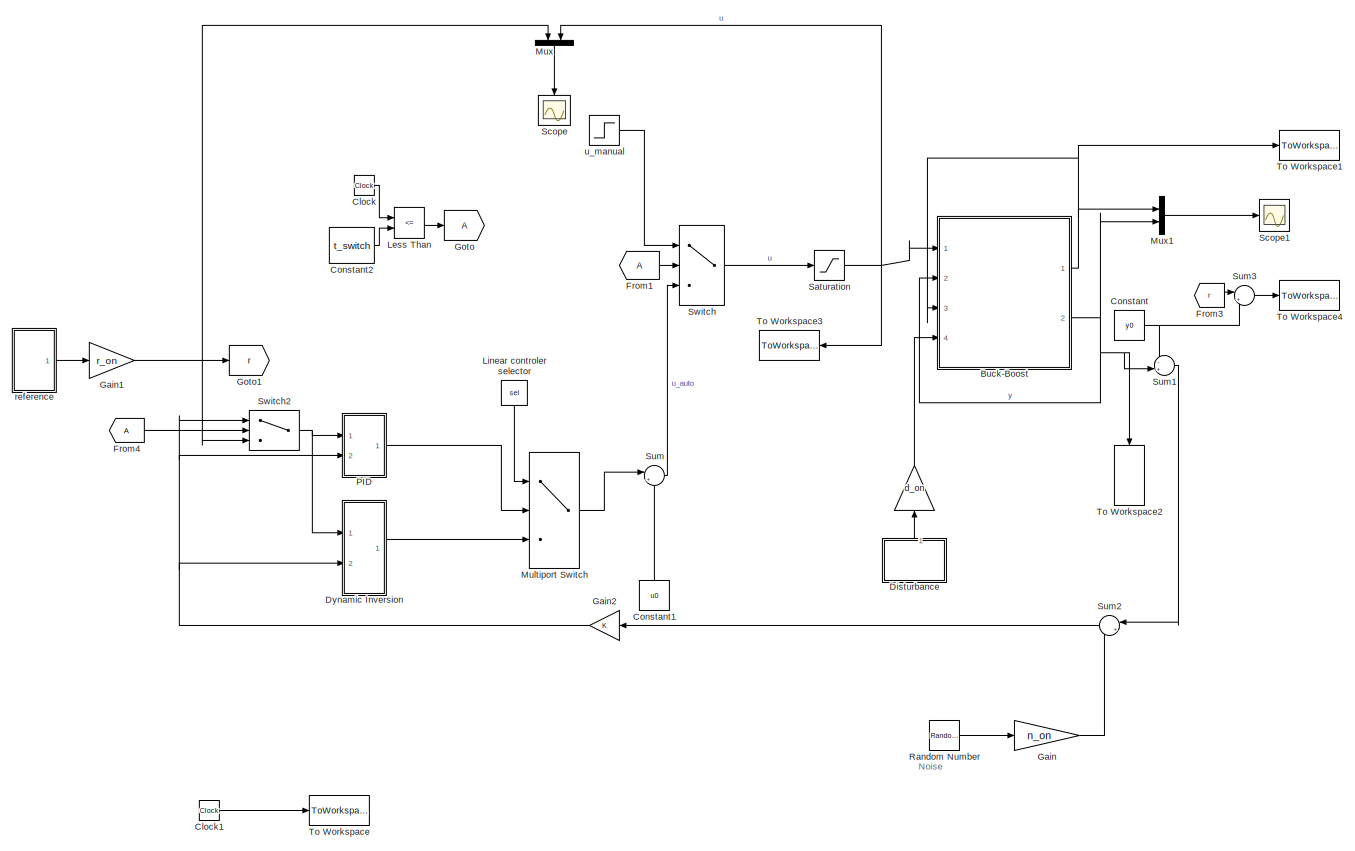
[diagram: root canvas - part 1/1, most of the canvas]
MODEL slx_1d9277c91b3c
KIND model
CONFIG AbsTol = auto
CONFIG EnableMultiTasking = off
CONFIG FixedStep = t_step
CONFIG MaxStep = auto
CONFIG MinStep = auto
CONFIG RelTol = 1e-3
CONFIG SampleTimeConstraint = Unconstrained
CONFIG Solver = ode4
CONFIG SolverName = ode4
CONFIG StartTime = 0.0
CONFIG StopTime = t_end
BLOCK [Gain]  
  Gain = d_on
  OutDataTypeStr = Inherit: Inherit via internal rule
  ParamDataTypeStr = Inherit: Inherit via internal rule
  SaturateOnIntegerOverflow = off
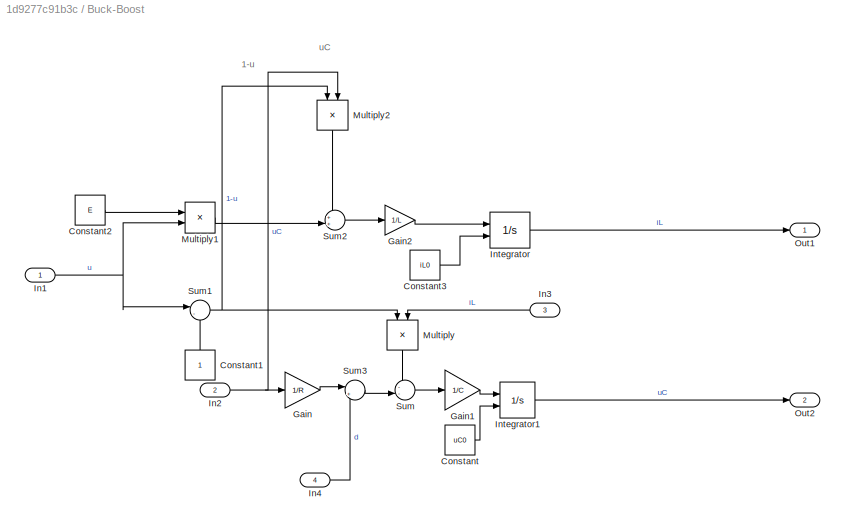
BLOCK [SubSystem] Buck-Boost
  Ports = [4, 2]
  RequestExecContextInheritance = off
  ShowPortLabels = SignalName
BLOCK [Constant] Buck-Boost/Constant
  Value = uC0
BLOCK [Constant] Buck-Boost/Constant1
BLOCK [Constant] Buck-Boost/Constant2
  Value = E
BLOCK [Constant] Buck-Boost/Constant3
  Value = iL0
BLOCK [Gain] Buck-Boost/Gain
  Gain = 1/R
  OutDataTypeStr = Inherit: Inherit via internal rule
  ParamDataTypeStr = Inherit: Inherit via internal rule
  SaturateOnIntegerOverflow = off
BLOCK [Gain] Buck-Boost/Gain1
  Gain = 1/C
  OutDataTypeStr = Inherit: Inherit via internal rule
  ParamDataTypeStr = Inherit: Inherit via internal rule
  SaturateOnIntegerOverflow = off
BLOCK [Gain] Buck-Boost/Gain2
  Gain = 1/L
  OutDataTypeStr = Inherit: Inherit via internal rule
  ParamDataTypeStr = Inherit: Inherit via internal rule
  SaturateOnIntegerOverflow = off
BLOCK [Inport] Buck-Boost/In1
  IconDisplay = Port number
BLOCK [Inport] Buck-Boost/In2
  IconDisplay = Port number
  Port = 2
BLOCK [Inport] Buck-Boost/In3
  IconDisplay = Port number
  Port = 3
BLOCK [Inport] Buck-Boost/In4
  IconDisplay = Port number
  Port = 4
BLOCK [Integrator] Buck-Boost/Integrator
  InitialConditionSource = external
  Ports = [2, 1]
BLOCK [Integrator] Buck-Boost/Integrator1
  InitialConditionSource = external
  Ports = [2, 1]
BLOCK [Product] Buck-Boost/Multiply
  InputSameDT = off
  OutDataTypeStr = Inherit: Inherit via internal rule
  Ports = [2, 1]
  RndMeth = Floor
  SaturateOnIntegerOverflow = off
BLOCK [Product] Buck-Boost/Multiply1
  InputSameDT = off
  OutDataTypeStr = Inherit: Inherit via internal rule
  Ports = [2, 1]
  RndMeth = Floor
  SaturateOnIntegerOverflow = off
BLOCK [Product] Buck-Boost/Multiply2
  InputSameDT = off
  OutDataTypeStr = Inherit: Inherit via internal rule
  Ports = [2, 1]
  RndMeth = Floor
  SaturateOnIntegerOverflow = off
BLOCK [Outport] Buck-Boost/Out1
  IconDisplay = Port number
BLOCK [Outport] Buck-Boost/Out2
  IconDisplay = Port number
  Port = 2
BLOCK [Sum] Buck-Boost/Sum
  IconShape = round
  InputSameDT = off
  Inputs = --|
  OutDataTypeStr = Inherit: Inherit via internal rule
  Ports = [2, 1]
  SaturateOnIntegerOverflow = off
BLOCK [Sum] Buck-Boost/Sum1
  IconShape = round
  InputSameDT = off
  Inputs = |-+
  OutDataTypeStr = Inherit: Inherit via internal rule
  Ports = [2, 1]
  SaturateOnIntegerOverflow = off
BLOCK [Sum] Buck-Boost/Sum2
  IconShape = round
  InputSameDT = off
  Inputs = ++|
  OutDataTypeStr = Inherit: Inherit via internal rule
  Ports = [2, 1]
  SaturateOnIntegerOverflow = off
BLOCK [Sum] Buck-Boost/Sum3
  IconShape = round
  InputSameDT = off
  Inputs = |++
  OutDataTypeStr = Inherit: Inherit via internal rule
  Ports = [2, 1]
  SaturateOnIntegerOverflow = off
BLOCK [Clock] Clock
BLOCK [Clock] Clock1
BLOCK [Constant] Constant
  Value = y0
BLOCK [Constant] Constant1
  Value = u0
BLOCK [Constant] Constant2
  Value = t_switch
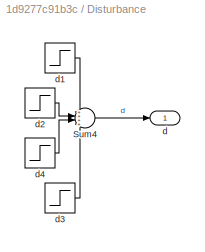
BLOCK [SubSystem] Disturbance
  Ports = [0, 1]
  RequestExecContextInheritance = off
BLOCK [Sum] Disturbance/Sum4
  IconShape = round
  InputSameDT = off
  Inputs = ++++
  OutDataTypeStr = Inherit: Inherit via internal rule
  Ports = [4, 1]
  SaturateOnIntegerOverflow = off
BLOCK [Outport] Disturbance/d
  IconDisplay = Port number
BLOCK [Step] Disturbance/d1 
  After = d_val
  SampleTime = 0
  Time = d_time
BLOCK [Step] Disturbance/d2 
  After = -d_val
  SampleTime = 0
  Time = d_time + d_delta
BLOCK [Step] Disturbance/d3 
  After = -d_val
  SampleTime = 0
  Time = d_time + d_delta*2
BLOCK [Step] Disturbance/d4 
  After = d_val
  SampleTime = 0
  Time = d_time + d_delta*3
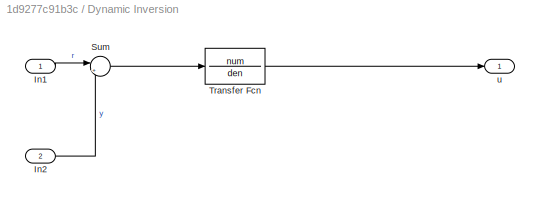
BLOCK [SubSystem] Dynamic Inversion
  Ports = [2, 1]
  RequestExecContextInheritance = off
  ShowPortLabels = SignalName
BLOCK [Inport] Dynamic Inversion/In1
  IconDisplay = Port number
BLOCK [Inport] Dynamic Inversion/In2
  IconDisplay = Port number
  Port = 2
BLOCK [Sum] Dynamic Inversion/Sum
  IconShape = round
  InputSameDT = off
  Inputs = |+-
  OutDataTypeStr = Inherit: Inherit via internal rule
  Ports = [2, 1]
  SaturateOnIntegerOverflow = off
BLOCK [TransferFcn] Dynamic Inversion/Transfer Fcn
  Denominator = den
  Numerator = num
BLOCK [Outport] Dynamic Inversion/u
  IconDisplay = Port number
BLOCK [From] From1
BLOCK [From] From3
  GotoTag = r
BLOCK [From] From4
BLOCK [Gain] Gain
  Gain = n_on
  OutDataTypeStr = Inherit: Inherit via internal rule
  ParamDataTypeStr = Inherit: Inherit via internal rule
  SaturateOnIntegerOverflow = off
BLOCK [Gain] Gain1
  Gain = r_on
  OutDataTypeStr = Inherit: Inherit via internal rule
  ParamDataTypeStr = Inherit: Inherit via internal rule
  SaturateOnIntegerOverflow = off
BLOCK [Gain] Gain2
  OutDataTypeStr = Inherit: Inherit via internal rule
  ParamDataTypeStr = Inherit: Inherit via internal rule
  SaturateOnIntegerOverflow = off
BLOCK [Goto] Goto
BLOCK [Goto] Goto1
  GotoTag = r
BLOCK [RelationalOperator] Less Than
  InputSameDT = off
  Operator = <=
  OutDataTypeStr = boolean
  Ports = [2, 1]
  RndMeth = Simplest
  ZeroCross = off
BLOCK [Constant] Linear controler selector
  SampleTime = -1
  Value = sel
  VectorParams1D = off
BLOCK [MultiPortSwitch] Multiport Switch
  InputSameDT = off
  Inputs = 2
  Ports = [3, 1]
  SaturateOnIntegerOverflow = off
BLOCK [Mux] Mux
  DisplayOption = bar
  Inputs = 2
  Ports = [2, 1]
BLOCK [Mux] Mux1
  DisplayOption = bar
  Inputs = 2
  Ports = [2, 1]
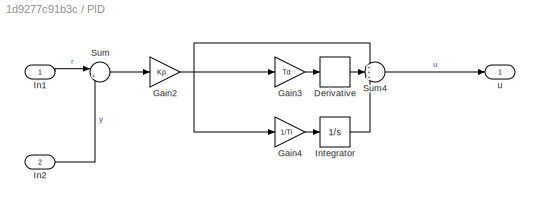
BLOCK [SubSystem] PID 
  Ports = [2, 1]
  RequestExecContextInheritance = off
  ShowPortLabels = SignalName
BLOCK [Derivative] PID /Derivative
  CoefficientInTFapproximation = 20*Td
BLOCK [Gain] PID /Gain2
  Gain = Kp
  OutDataTypeStr = Inherit: Inherit via internal rule
  ParamDataTypeStr = Inherit: Inherit via internal rule
  SaturateOnIntegerOverflow = off
BLOCK [Gain] PID /Gain3
  Gain = Td
  OutDataTypeStr = Inherit: Inherit via internal rule
  ParamDataTypeStr = Inherit: Inherit via internal rule
  SaturateOnIntegerOverflow = off
BLOCK [Gain] PID /Gain4
  Gain = 1/Ti
  OutDataTypeStr = Inherit: Inherit via internal rule
  ParamDataTypeStr = Inherit: Inherit via internal rule
  SaturateOnIntegerOverflow = off
BLOCK [Inport] PID /In1
  IconDisplay = Port number
BLOCK [Inport] PID /In2
  IconDisplay = Port number
  Port = 2
BLOCK [Integrator] PID /Integrator
  Ports = [1, 1]
BLOCK [Sum] PID /Sum
  IconShape = round
  InputSameDT = off
  Inputs = |+-
  OutDataTypeStr = Inherit: Inherit via internal rule
  Ports = [2, 1]
  SaturateOnIntegerOverflow = off
BLOCK [Sum] PID /Sum4
  IconShape = round
  InputSameDT = off
  Inputs = +++
  OutDataTypeStr = Inherit: Inherit via internal rule
  Ports = [3, 1]
  SaturateOnIntegerOverflow = off
BLOCK [Outport] PID /u
  IconDisplay = Port number
BLOCK [RandomNumber] Random Number
  SampleTime = t_step
  Variance = sigma_n
BLOCK [Saturate] Saturation
  InputPortMap = u0
  LowerLimit = 0
  Ports = [1, 1]
  UpperLimit = 1
BLOCK [Scope] Scope
  Floating = off
  NumInputPorts = 1
  Ports = [1]
  ScopeSpecificationString = Simulink.scopes.TimeScopeBlockCfg('CurrentConfiguration', extmgr.ConfigurationSet(extmgr.Configuration('Core','General UI',true),extmgr.Configuration('Core','Source UI',true),extmgr.Configuration('Sources','WiredSimulink',true),extmgr.Configuration('Visuals','Time Domain',true,'SerializedDisplays',{struct('MinYLimReal','-1.26204','MaxYLimReal','1.91551','YLabelReal','','MinYLimMag','0.00000','MaxY...<+1397ch>
BLOCK [Scope] Scope1
  Floating = off
  NumInputPorts = 1
  Ports = [1]
  ScopeSpecificationString = Simulink.scopes.TimeScopeBlockCfg('CurrentConfiguration', extmgr.ConfigurationSet(extmgr.Configuration('Core','General UI',true),extmgr.Configuration('Core','Source UI',true),extmgr.Configuration('Sources','WiredSimulink',true,'DataLoggingVariableName','ScopeData1'),extmgr.Configuration('Visuals','Time Domain',true,'SerializedDisplays',{struct('MinYLimReal','-32.12826','MaxYLimReal','2.79327','YLa...<+1823ch>
BLOCK [Sum] Sum
  IconShape = round
  InputSameDT = off
  Inputs = |++
  OutDataTypeStr = Inherit: Inherit via internal rule
  Ports = [2, 1]
  SaturateOnIntegerOverflow = off
BLOCK [Sum] Sum1
  IconShape = round
  InputSameDT = off
  Inputs = -+|
  OutDataTypeStr = Inherit: Inherit via internal rule
  Ports = [2, 1]
  SaturateOnIntegerOverflow = off
BLOCK [Sum] Sum2
  IconShape = round
  InputSameDT = off
  Inputs = |++
  OutDataTypeStr = Inherit: Inherit via internal rule
  Ports = [2, 1]
  SaturateOnIntegerOverflow = off
BLOCK [Sum] Sum3
  IconShape = round
  InputSameDT = off
  Inputs = |++
  OutDataTypeStr = Inherit: Inherit via internal rule
  Ports = [2, 1]
  SaturateOnIntegerOverflow = off
BLOCK [Switch] Switch
  Criteria = u2 > Threshold
  InputSameDT = off
  SaturateOnIntegerOverflow = off
BLOCK [Switch] Switch2
  Criteria = u2 > Threshold
  InputSameDT = off
  SaturateOnIntegerOverflow = off
BLOCK [ToWorkspace] To Workspace
  FixptAsFi = on
  MaxDataPoints = inf
  Ports = [1]
  SampleTime = -1
  Save2DSignal = 3-D array (concatenate along third dimension)
  VariableName = t
BLOCK [ToWorkspace] To Workspace1
  FixptAsFi = on
  MaxDataPoints = inf
  Ports = [1]
  SampleTime = -1
  Save2DSignal = 3-D array (concatenate along third dimension)
  VariableName = iL_out
BLOCK [ToWorkspace] To Workspace2
  FixptAsFi = on
  MaxDataPoints = inf
  Ports = [1]
  SampleTime = -1
  Save2DSignal = 3-D array (concatenate along third dimension)
  VariableName = y_out
BLOCK [ToWorkspace] To Workspace3
  FixptAsFi = on
  MaxDataPoints = inf
  Ports = [1]
  SampleTime = -1
  Save2DSignal = 3-D array (concatenate along third dimension)
  VariableName = u_out
BLOCK [ToWorkspace] To Workspace4
  FixptAsFi = on
  MaxDataPoints = inf
  Ports = [1]
  SampleTime = -1
  Save2DSignal = 3-D array (concatenate along third dimension)
  VariableName = total_ref
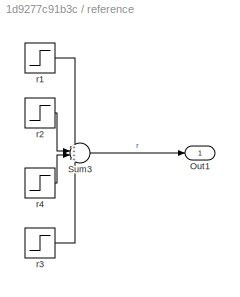
BLOCK [SubSystem] reference 
  Ports = [0, 1]
  RequestExecContextInheritance = off
  ShowPortLabels = SignalName
BLOCK [Outport] reference /Out1
  IconDisplay = Port number
BLOCK [Sum] reference /Sum3
  IconShape = round
  InputSameDT = off
  Inputs = ++++
  OutDataTypeStr = Inherit: Inherit via internal rule
  Ports = [4, 1]
  SaturateOnIntegerOverflow = off
BLOCK [Step] reference /r1 
  After = r_val
  SampleTime = 0
  Time = r_time
BLOCK [Step] reference /r2 
  After = -r_val
  SampleTime = 0
  Time = r_time + r_delta
BLOCK [Step] reference /r3 
  After = -r_val
  SampleTime = 0
  Time = r_time + 2*r_delta
BLOCK [Step] reference /r4 
  After = r_val
  SampleTime = 0
  Time = r_time + 3*r_delta
BLOCK [Step] u_manual 
  After = u_manual
  SampleTime = 0
  Time = 0
ANNOTATION (root): Noise
ANNOTATION Buck-Boost: 1-u
ANNOTATION Buck-Boost: uC
LINE  :1 -> Buck-Boost:4
LINE Buck-Boost/Constant1:1 -> Buck-Boost/Sum1:2
LINE Buck-Boost/Constant2:1 -> Buck-Boost/Multiply1:1
LINE Buck-Boost/Constant3:1 -> Buck-Boost/Integrator:2
LINE Buck-Boost/Constant:1 -> Buck-Boost/Integrator1:2
LINE Buck-Boost/Gain1:1 -> Buck-Boost/Integrator1:1
LINE Buck-Boost/Gain2:1 -> Buck-Boost/Integrator:1
LINE Buck-Boost/Gain:1 -> Buck-Boost/Sum3:1
NET Buck-Boost/In1:1 -> Buck-Boost/Multiply1:2, Buck-Boost/Sum1:1
NET Buck-Boost/In2:1 -> Buck-Boost/Gain:1, Buck-Boost/Multiply2:2
LINE Buck-Boost/In3:1 -> Buck-Boost/Multiply:2
LINE Buck-Boost/In4:1 -> Buck-Boost/Sum3:2
LINE Buck-Boost/Integrator1:1 -> Buck-Boost/Out2:1
LINE Buck-Boost/Integrator:1 -> Buck-Boost/Out1:1
LINE Buck-Boost/Multiply1:1 -> Buck-Boost/Sum2:2
LINE Buck-Boost/Multiply2:1 -> Buck-Boost/Sum2:1
LINE Buck-Boost/Multiply:1 -> Buck-Boost/Sum:1
NET Buck-Boost/Sum1:1 -> Buck-Boost/Multiply2:1, Buck-Boost/Multiply:1
LINE Buck-Boost/Sum2:1 -> Buck-Boost/Gain2:1
LINE Buck-Boost/Sum3:1 -> Buck-Boost/Sum:2
LINE Buck-Boost/Sum:1 -> Buck-Boost/Gain1:1
NET Buck-Boost:1 -> Buck-Boost:3, Mux1:1, To Workspace1:1
NET Buck-Boost:2 -> Buck-Boost:2, Mux1:2, Sum1:2, To Workspace2:1
LINE Clock1:1 -> To Workspace:1
LINE Clock:1 -> Less Than:1
LINE Constant1:1 -> Sum:2
LINE Constant2:1 -> Less Than:2
NET Constant:1 -> Sum1:1, Sum3:2
LINE Disturbance/Sum4:1 -> Disturbance/d:1
LINE Disturbance/d1 :1 -> Disturbance/Sum4:1
LINE Disturbance/d2 :1 -> Disturbance/Sum4:2
LINE Disturbance/d3 :1 -> Disturbance/Sum4:4
LINE Disturbance/d4 :1 -> Disturbance/Sum4:3
LINE Disturbance:1 ->  :1
LINE Dynamic Inversion/In1:1 -> Dynamic Inversion/Sum:1
LINE Dynamic Inversion/In2:1 -> Dynamic Inversion/Sum:2
LINE Dynamic Inversion/Sum:1 -> Dynamic Inversion/Transfer Fcn:1
LINE Dynamic Inversion/Transfer Fcn:1 -> Dynamic Inversion/u:1
LINE Dynamic Inversion:1 -> Multiport Switch:3
LINE From1:1 -> Switch:2
LINE From3:1 -> Sum3:1
LINE From4:1 -> Switch2:2
NET Gain1:1 -> Goto1:1, Mux:1, Switch2:3
NET Gain2:1 -> Dynamic Inversion:2, PID :2, Switch2:1
LINE Gain:1 -> Sum2:2
LINE Less Than:1 -> Goto:1
LINE Linear controler selector:1 -> Multiport Switch:1
LINE Multiport Switch:1 -> Sum:1
LINE Mux1:1 -> Scope1:1
LINE Mux:1 -> Scope:1
LINE PID /Derivative:1 -> PID /Sum4:2
NET PID /Gain2:1 -> PID /Gain3:1, PID /Gain4:1, PID /Sum4:1
LINE PID /Gain3:1 -> PID /Derivative:1
LINE PID /Gain4:1 -> PID /Integrator:1
LINE PID /In1:1 -> PID /Sum:1
LINE PID /In2:1 -> PID /Sum:2
LINE PID /Integrator:1 -> PID /Sum4:3
LINE PID /Sum4:1 -> PID /u:1
LINE PID /Sum:1 -> PID /Gain2:1
LINE PID :1 -> Multiport Switch:2
LINE Random Number:1 -> Gain:1
NET Saturation:1 -> Buck-Boost:1, Mux:2, To Workspace3:1
LINE Sum1:1 -> Sum2:1
LINE Sum2:1 -> Gain2:1
LINE Sum3:1 -> To Workspace4:1
LINE Sum:1 -> Switch:3
NET Switch2:1 -> Dynamic Inversion:1, PID :1
LINE Switch:1 -> Saturation:1
LINE reference /Sum3:1 -> reference /Out1:1
LINE reference /r1 :1 -> reference /Sum3:1
LINE reference /r2 :1 -> reference /Sum3:2
LINE reference /r3 :1 -> reference /Sum3:4
LINE reference /r4 :1 -> reference /Sum3:3
LINE reference :1 -> Gain1:1
LINE u_manual :1 -> Switch:1
note: NET lines group one-source signal fan-out (src -> all destinations, sorted); 1:1 wires keep LINE
